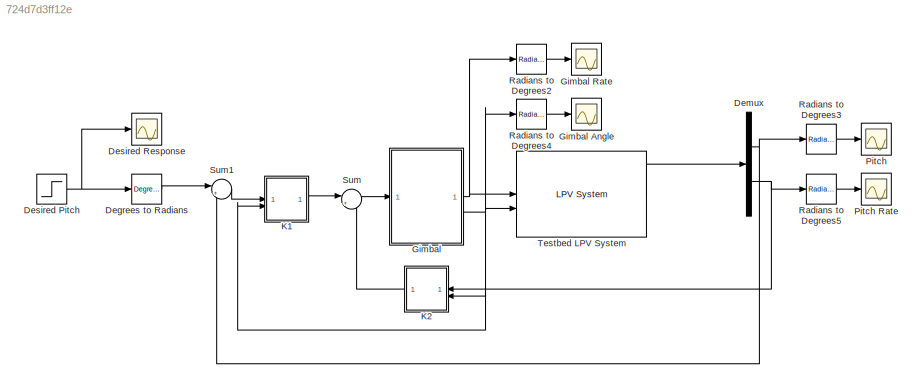
MODEL slx_724d7d3ff12e
KIND model
CONFIG AbsTol = auto
CONFIG EnableMultiTasking = off
CONFIG FixedStep = auto
CONFIG MaxStep = auto
CONFIG MinStep = auto
CONFIG RelTol = 1e-3
CONFIG SampleTimeConstraint = Unconstrained
CONFIG SolverName = VariableStepAuto
CONFIG StartTime = 0.0
CONFIG StopTime = tf
BLOCK [Reference] Degrees to Radians  REF=simulink_extras/Transformations/Degrees to
Radians
  SourceBlock = simulink_extras/Transformations/Degrees to\nRadians
  SourceType = DegreesToRadians
BLOCK [Demux] Demux
  Outputs = 2
BLOCK [Step] Desired Pitch
  After = 20
  SampleTime = 0
BLOCK [Scope] Desired Response
  Floating = off
  NumInputPorts = 1
  ScopeSpecificationString = Simulink.scopes.TimeScopeBlockCfg('CurrentConfiguration', extmgr.ConfigurationSet(extmgr.Configuration('Core','General UI',true),extmgr.Configuration('Core','Source UI',true),extmgr.Configuration('Sources','WiredSimulink',true,'DataLoggingVariableName','Input','DataLogging',true,'DataLoggingSaveFormat','StructureWithTime'),extmgr.Configuration('Visuals','Time Domain',true,'SerializedDisplays',{str...<+1554ch>
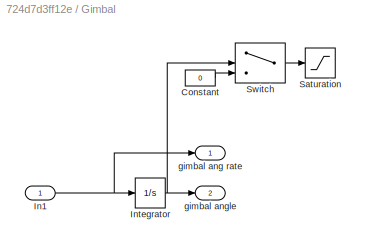
BLOCK [SubSystem] Gimbal
BLOCK [Scope] Gimbal Angle
  Floating = off
  NumInputPorts = 1
  ScopeSpecificationString = Simulink.scopes.TimeScopeBlockCfg('CurrentConfiguration', extmgr.ConfigurationSet(extmgr.Configuration('Core','General UI',true),extmgr.Configuration('Core','Source UI',true),extmgr.Configuration('Sources','WiredSimulink',true,'DataLoggingVariableName','gamma_output','DataLogging',true,'DataLoggingSaveFormat','StructureWithTime'),extmgr.Configuration('Visuals','Time Domain',true,'SerializedDisplay...<+1558ch>
BLOCK [Scope] Gimbal Rate
  Floating = off
  NumInputPorts = 1
  ScopeSpecificationString = Simulink.scopes.TimeScopeBlockCfg('CurrentConfiguration', extmgr.ConfigurationSet(extmgr.Configuration('Core','General UI',true),extmgr.Configuration('Core','Source UI',true),extmgr.Configuration('Sources','WiredSimulink',true,'DataLoggingVariableName','gamma_output_rates','DataLogging',true,'DataLoggingSaveFormat','StructureWithTime'),extmgr.Configuration('Visuals','Time Domain',true,'SerializedD...<+1607ch>
BLOCK [Constant] Gimbal/Constant
  Value = 0
BLOCK [Inport] Gimbal/In1
BLOCK [Integrator] Gimbal/Integrator
  InitialCondition = [gamma1_initial,gamma2_initial]
BLOCK [Saturate] Gimbal/Saturation
BLOCK [Switch] Gimbal/Switch
  Criteria = u2 > Threshold
  InputSameDT = off
  SaturateOnIntegerOverflow = off
BLOCK [Outport] Gimbal/gimbal ang rate
BLOCK [Outport] Gimbal/gimbal angle
  Port = 2
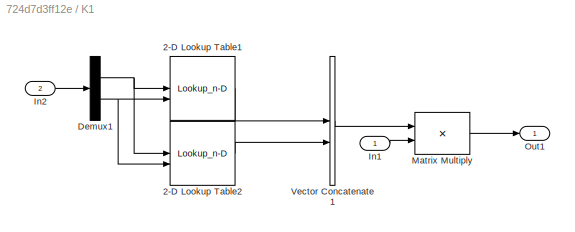
BLOCK [SubSystem] K1
BLOCK [Lookup_n-D] K1/2-D Lookup Table1
  BreakpointsForDimension1 = p1
  BreakpointsForDimension2 = p2
  InputPortMap = u0,u1
  InternalRulePriority = Speed
  RndMeth = Simplest
  Table = K1
BLOCK [Lookup_n-D] K1/2-D Lookup Table2
  BreakpointsForDimension1 = p1
  BreakpointsForDimension2 = p2
  InputPortMap = u0,u1
  InternalRulePriority = Speed
  RndMeth = Simplest
  Table = K3
BLOCK [Demux] K1/Demux1
  Outputs = 2
BLOCK [Inport] K1/In1
BLOCK [Inport] K1/In2
  Port = 2
BLOCK [Product] K1/Matrix Multiply
  Multiplication = Matrix(*)
BLOCK [Outport] K1/Out1
BLOCK [Concatenate] K1/Vector Concatenate1
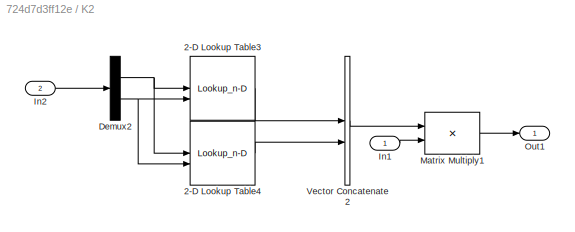
BLOCK [SubSystem] K2
BLOCK [Lookup_n-D] K2/2-D Lookup Table3
  BreakpointsForDimension1 = p1
  BreakpointsForDimension2 = p2
  InputPortMap = u0,u1
  InternalRulePriority = Speed
  RndMeth = Simplest
  Table = K2
BLOCK [Lookup_n-D] K2/2-D Lookup Table4
  BreakpointsForDimension1 = p1
  BreakpointsForDimension2 = p2
  InputPortMap = u0,u1
  InternalRulePriority = Speed
  RndMeth = Simplest
  Table = K4
BLOCK [Demux] K2/Demux2
  Outputs = 2
BLOCK [Inport] K2/In1
BLOCK [Inport] K2/In2
  NameLocation = top
  Port = 2
BLOCK [Product] K2/Matrix Multiply1
  Multiplication = Matrix(*)
BLOCK [Outport] K2/Out1
BLOCK [Concatenate] K2/Vector Concatenate2
BLOCK [Scope] Pitch
  Floating = off
  NumInputPorts = 1
  ScopeSpecificationString = Simulink.scopes.TimeScopeBlockCfg('CurrentConfiguration', extmgr.ConfigurationSet(extmgr.Configuration('Core','General UI',true),extmgr.Configuration('Core','Source UI',true),extmgr.Configuration('Sources','WiredSimulink',true,'DataLoggingVariableName','Attitude_Angles','DataLogging',true,'DataLoggingSaveFormat','StructureWithTime'),extmgr.Configuration('Visuals','Time Domain',true,'SerializedDisp...<+1569ch>
BLOCK [Scope] Pitch Rate
  Floating = off
  NumInputPorts = 1
  ScopeSpecificationString = Simulink.scopes.TimeScopeBlockCfg('CurrentConfiguration', extmgr.ConfigurationSet(extmgr.Configuration('Core','General UI',true),extmgr.Configuration('Core','Source UI',true),extmgr.Configuration('Sources','WiredSimulink',true,'DataLoggingVariableName','Attitude_Angles_Rates','DataLogging',true,'DataLoggingSaveFormat','StructureWithTime'),extmgr.Configuration('Visuals','Time Domain',true,'Serializ...<+1581ch>
BLOCK [Reference] Radians to Degrees2  REF=simulink_extras/Transformations/Radians
to Degrees
  SourceBlock = simulink_extras/Transformations/Radians\nto Degrees
  SourceType = RadiansToDegrees
BLOCK [Reference] Radians to Degrees3  REF=simulink_extras/Transformations/Radians
to Degrees
  SourceBlock = simulink_extras/Transformations/Radians\nto Degrees
  SourceType = RadiansToDegrees
BLOCK [Reference] Radians to Degrees4  REF=simulink_extras/Transformations/Radians
to Degrees
  SourceBlock = simulink_extras/Transformations/Radians\nto Degrees
  SourceType = RadiansToDegrees
BLOCK [Reference] Radians to Degrees5  REF=simulink_extras/Transformations/Radians
to Degrees
  SourceBlock = simulink_extras/Transformations/Radians\nto Degrees
  SourceType = RadiansToDegrees
BLOCK [Sum] Sum
  Inputs = |+-
BLOCK [Sum] Sum1
  Inputs = |+-
BLOCK [Reference] Testbed LPV System  REF=cstblocks/Linear Parameter Varying/LPV System
  SourceBlock = cstblocks/Linear Parameter Varying/LPV System
  SourceType = LPV Block
LINE Degrees to Radians:1 -> Sum1:1
NET Demux:1 -> Radians to Degrees3:1, Sum1:2
NET Demux:2 -> K2:1, Radians to Degrees5:1
NET Desired Pitch:1 -> Degrees to Radians:1, Desired Response:1
LINE Gimbal/Constant:1 -> Gimbal/Switch:3
NET Gimbal/In1:1 -> Gimbal/Integrator:1, Gimbal/gimbal ang rate:1
NET Gimbal/Integrator:1 -> Gimbal/Switch:2, Gimbal/gimbal angle:1
LINE Gimbal/Switch:1 -> Gimbal/Saturation:1
NET Gimbal:1 -> Radians to Degrees2:1, Testbed LPV System:1
NET Gimbal:2 -> K1:2, K2:2, Radians to Degrees4:1, Testbed LPV System:2
LINE K1/2-D Lookup Table1:1 -> K1/Vector Concatenate1:1
LINE K1/2-D Lookup Table2:1 -> K1/Vector Concatenate1:2
NET K1/Demux1:1 -> K1/2-D Lookup Table1:1, K1/2-D Lookup Table2:1
NET K1/Demux1:2 -> K1/2-D Lookup Table1:2, K1/2-D Lookup Table2:2
LINE K1/In1:1 -> K1/Matrix Multiply:2
LINE K1/In2:1 -> K1/Demux1:1
LINE K1/Matrix Multiply:1 -> K1/Out1:1
LINE K1/Vector Concatenate1:1 -> K1/Matrix Multiply:1
LINE K1:1 -> Sum:1
LINE K2/2-D Lookup Table3:1 -> K2/Vector Concatenate2:1
LINE K2/2-D Lookup Table4:1 -> K2/Vector Concatenate2:2
NET K2/Demux2:1 -> K2/2-D Lookup Table3:1, K2/2-D Lookup Table4:1
NET K2/Demux2:2 -> K2/2-D Lookup Table3:2, K2/2-D Lookup Table4:2
LINE K2/In1:1 -> K2/Matrix Multiply1:2
LINE K2/In2:1 -> K2/Demux2:1
LINE K2/Matrix Multiply1:1 -> K2/Out1:1
LINE K2/Vector Concatenate2:1 -> K2/Matrix Multiply1:1
LINE K2:1 -> Sum:2
LINE Radians to Degrees2:1 -> Gimbal Rate:1
LINE Radians to Degrees3:1 -> Pitch:1
LINE Radians to Degrees4:1 -> Gimbal Angle:1
LINE Radians to Degrees5:1 -> Pitch Rate:1
LINE Sum1:1 -> K1:1
LINE Sum:1 -> Gimbal:1
LINE Testbed LPV System:1 -> Demux:1
note: NET lines group one-source signal fan-out (src -> all destinations, sorted); 1:1 wires keep LINE
